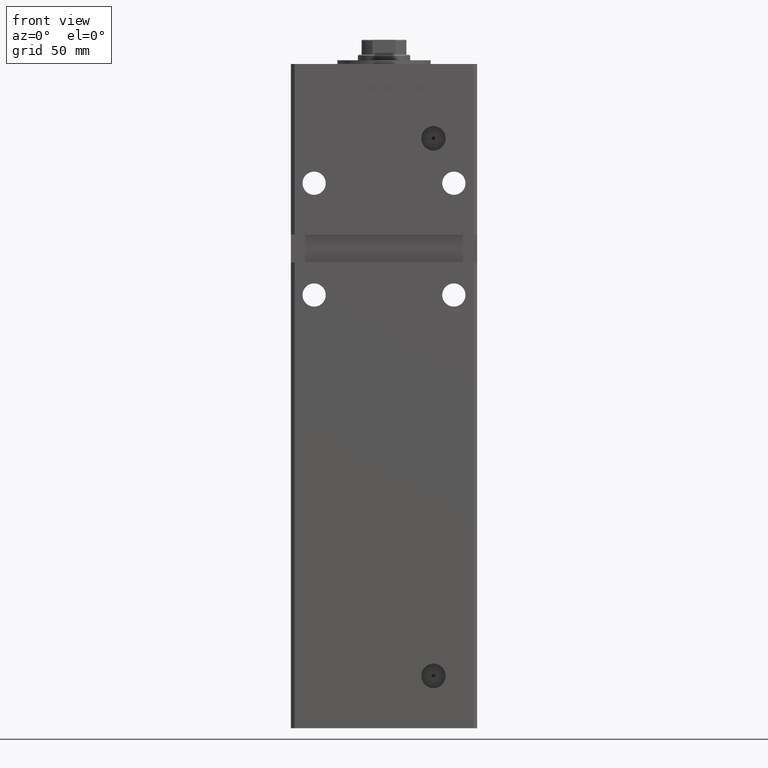
[diagram: clean part render]
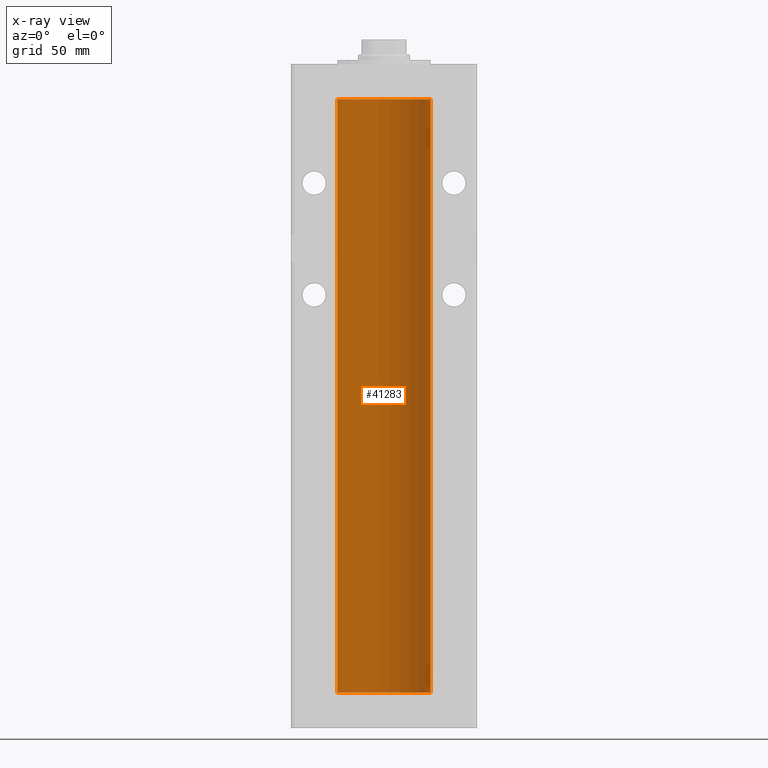
[diagram: x-ray — body ghosted, one internal face saturated and labeled with its STEP entity id]
A machine part, front view, then the same camera in x-ray: the body is ghosted and one INTERNAL B-rep face — a face not visible from any outside direction — is saturated and labeled: STEP entity #41283.
In plain terms, the highlighted cylindrical surface (partial cylindrical patch) has radius 25 mm, axis along (-0, -0, -1).
Its self-contained STEP definition (entity closure, byte-faithful):
#110 = EDGE_CURVE ( 'NONE', #9995, #28942, #8048, .T. ) ;
#147 = EDGE_CURVE ( 'NONE', #33331, #9995, #41218, .T. ) ;
#1441 = EDGE_LOOP ( 'NONE', ( #7090, #5713, #14283, #11610 ) ) ;
#5713 = ORIENTED_EDGE ( 'NONE', *, *, #147, .T. ) ;
#7090 = ORIENTED_EDGE ( 'NONE', *, *, #14863, .F. ) ;
#7532 = EDGE_CURVE ( 'NONE', #32147, #28942, #20823, .T. ) ;
#7729 = LINE ( 'NONE', #44517, #32513 ) ;
#7870 = FACE_OUTER_BOUND ( 'NONE', #1441, .T. ) ;
#8048 = LINE ( 'NONE', #44839, #52371 ) ;
#9794 = CARTESIAN_POINT ( 'NONE',  ( 0.000000000000000000, 0.000000000000000000, 0.000000000000000000 ) ) ;
#9995 = VERTEX_POINT ( 'NONE', #40519 ) ;
#11610 = ORIENTED_EDGE ( 'NONE', *, *, #7532, .F. ) ;
#14283 = ORIENTED_EDGE ( 'NONE', *, *, #110, .T. ) ;
#14863 = EDGE_CURVE ( 'NONE', #33331, #32147, #7729, .T. ) ;
#18099 = DIRECTION ( 'NONE',  ( 1.000000000000000000, 0.000000000000000000, 0.000000000000000000 ) ) ;
#20463 = DIRECTION ( 'NONE',  ( -1.000000000000000000, 0.000000000000000000, 0.000000000000000000 ) ) ;
#20823 = CIRCLE ( 'NONE', #50897, 25.00000000000000000 ) ;
#22605 = DIRECTION ( 'NONE',  ( -0.000000000000000000, -0.000000000000000000, -1.000000000000000000 ) ) ;
#24671 = CARTESIAN_POINT ( 'NONE',  ( 0.000000000000000000, 0.000000000000000000, 318.5000000000000000 ) ) ;
#26165 = DIRECTION ( 'NONE',  ( -0.000000000000000000, 0.000000000000000000, 1.000000000000000000 ) ) ;
#28942 = VERTEX_POINT ( 'NONE', #52436 ) ;
#31429 = DIRECTION ( 'NONE',  ( -0.000000000000000000, -0.000000000000000000, -1.000000000000000000 ) ) ;
#32147 = VERTEX_POINT ( 'NONE', #37752 ) ;
#32513 = VECTOR ( 'NONE', #22605, 1000.000000000000000 ) ;
#33266 = DIRECTION ( 'NONE',  ( -0.000000000000000000, 0.000000000000000000, 1.000000000000000000 ) ) ;
#33331 = VERTEX_POINT ( 'NONE', #42327 ) ;
#33995 = AXIS2_PLACEMENT_3D ( 'NONE', #52477, #49230, #20463 ) ;
#36765 = DIRECTION ( 'NONE',  ( 1.000000000000000000, 0.000000000000000000, 0.000000000000000000 ) ) ;
#37752 = CARTESIAN_POINT ( 'NONE',  ( 25.00000000000000000, 3.061616997868383043E-15, 0.000000000000000000 ) ) ;
#40519 = CARTESIAN_POINT ( 'NONE',  ( -25.00000000000000000, 0.000000000000000000, 318.5000000000000000 ) ) ;
#41218 = CIRCLE ( 'NONE', #44646, 25.00000000000000000 ) ;
#41283 = ADVANCED_FACE ( 'NONE', ( #7870 ), #49491, .F. ) ;
#42327 = CARTESIAN_POINT ( 'NONE',  ( 25.00000000000000000, 3.061616997868383043E-15, 318.5000000000000000 ) ) ;
#44517 = CARTESIAN_POINT ( 'NONE',  ( 25.00000000000000000, 3.061616997868383043E-15, 318.5000000000000000 ) ) ;
#44646 = AXIS2_PLACEMENT_3D ( 'NONE', #24671, #33266, #36765 ) ;
#44839 = CARTESIAN_POINT ( 'NONE',  ( -25.00000000000000000, 0.000000000000000000, 318.5000000000000000 ) ) ;
#49230 = DIRECTION ( 'NONE',  ( -0.000000000000000000, -0.000000000000000000, -1.000000000000000000 ) ) ;
#49491 = CYLINDRICAL_SURFACE ( 'NONE', #33995, 25.00000000000000000 ) ;
#50897 = AXIS2_PLACEMENT_3D ( 'NONE', #9794, #26165, #18099 ) ;
#52371 = VECTOR ( 'NONE', #31429, 1000.000000000000000 ) ;
#52436 = CARTESIAN_POINT ( 'NONE',  ( -25.00000000000000000, 0.000000000000000000, 0.000000000000000000 ) ) ;
#52477 = CARTESIAN_POINT ( 'NONE',  ( 0.000000000000000000, 0.000000000000000000, 318.5000000000000000 ) ) ;